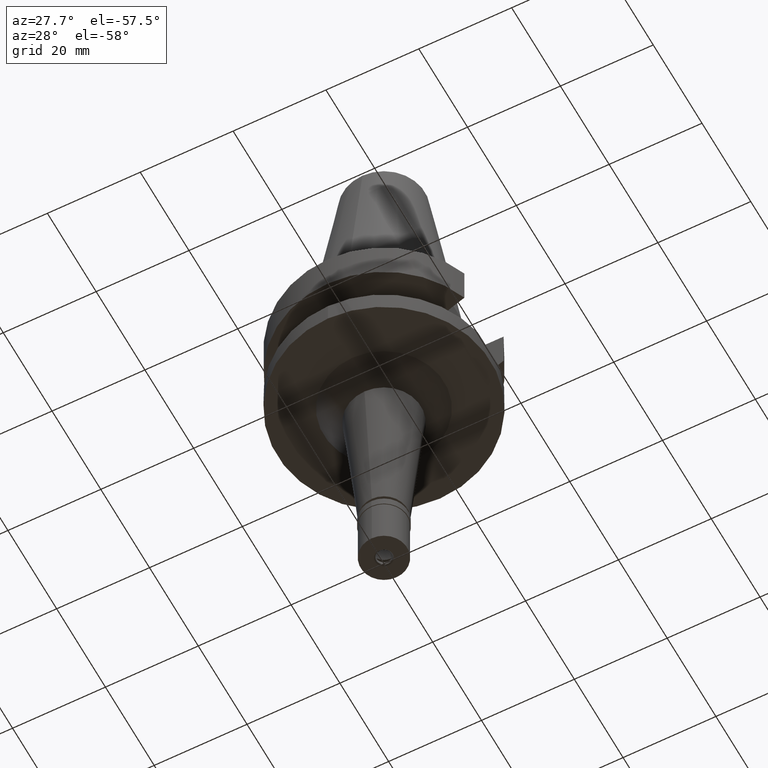
[diagram: clean part render]
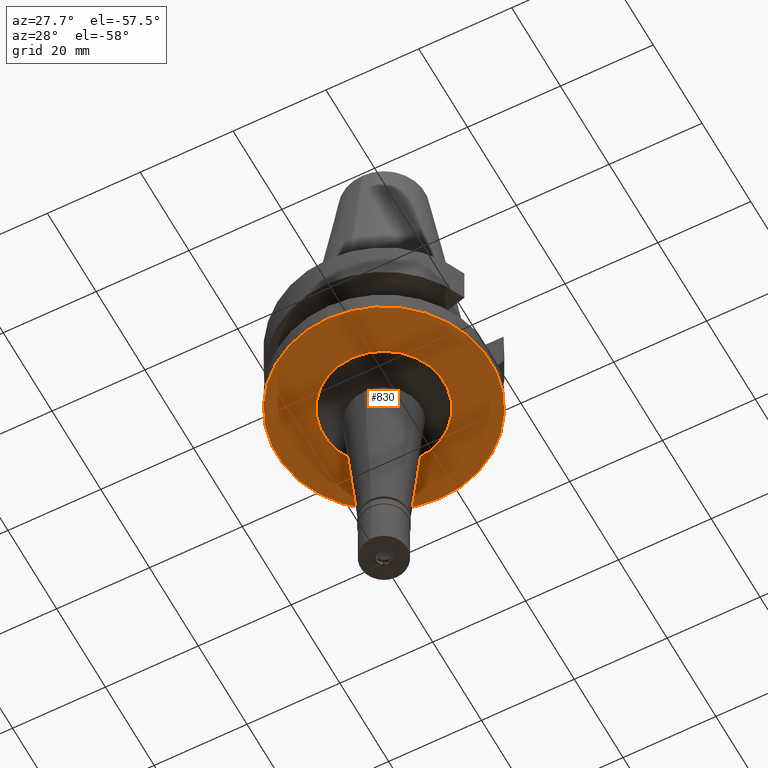
[diagram: same view with one face highlighted and labeled with its STEP entity id]
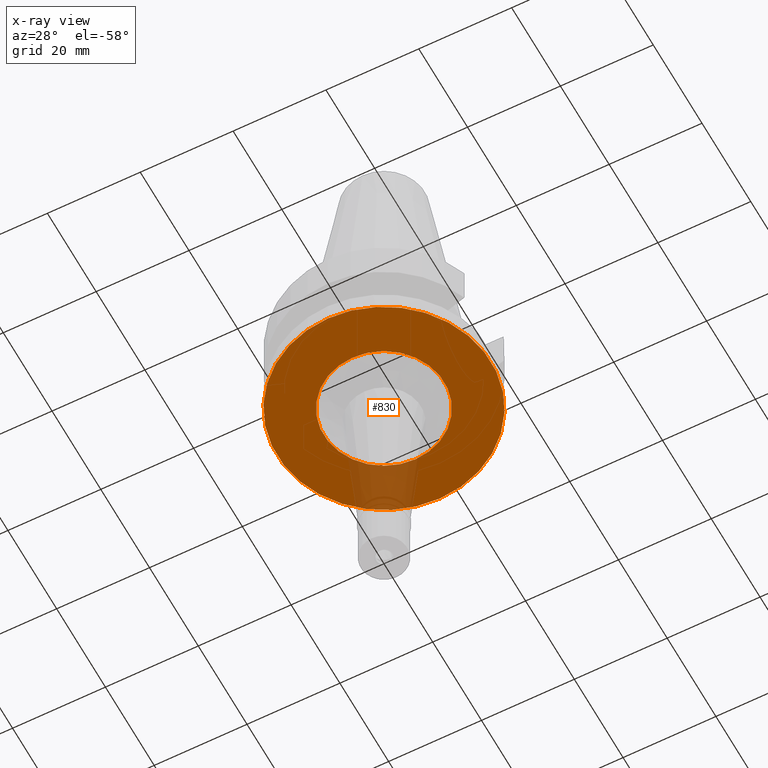
[diagram: x-ray of the same camera — body ghosted, the highlighted face saturated]
A machine part, auxiliary view. The second image highlights one B-rep face of the part: STEP entity #830.
The next image is the same camera in x-ray: the body ghosted, the highlighted face saturated — about 11% of this face is hidden behind the body in this view.
In plain terms, the highlighted planar face has unit normal (0, 0, -1).
Its self-contained STEP definition (entity closure, byte-faithful):
#98 = CARTESIAN_POINT ( 'NONE',  ( 0.0000000000000000000, 23.00000000000000000, -22.00000000000000000 ) ) ;
#202 = ORIENTED_EDGE ( 'NONE', *, *, #1819, .F. ) ;
#225 = EDGE_CURVE ( 'NONE', #638, #2445, #453, .T. ) ;
#265 = DIRECTION ( 'NONE',  ( 0.0000000000000000000, 1.000000000000000000, 0.0000000000000000000 ) ) ;
#289 = DIRECTION ( 'NONE',  ( 0.0000000000000000000, 0.0000000000000000000, 1.000000000000000000 ) ) ;
#341 = DIRECTION ( 'NONE',  ( 0.0000000000000000000, 0.0000000000000000000, -1.000000000000000000 ) ) ;
#384 = DIRECTION ( 'NONE',  ( 0.0000000000000000000, -1.000000000000000000, 0.0000000000000000000 ) ) ;
#453 = CIRCLE ( 'NONE', #1450, 23.00000000000000000 ) ;
#480 = ORIENTED_EDGE ( 'NONE', *, *, #1225, .F. ) ;
#498 = EDGE_CURVE ( 'NONE', #1632, #1484, #2029, .T. ) ;
#638 = VERTEX_POINT ( 'NONE', #98 ) ;
#722 = CIRCLE ( 'NONE', #1875, 12.97461455987999912 ) ;
#754 = FACE_BOUND ( 'NONE', #2226, .T. ) ;
#765 = CARTESIAN_POINT ( 'NONE',  ( 0.0000000000000000000, 1.890670960863999669E-14, -22.00000000000000000 ) ) ;
#830 = ADVANCED_FACE ( 'NONE', ( #975, #754 ), #2860, .T. ) ;
#953 = DIRECTION ( 'NONE',  ( 0.0000000000000000000, -1.000000000000000000, 0.0000000000000000000 ) ) ;
#975 = FACE_OUTER_BOUND ( 'NONE', #1574, .T. ) ;
#1064 = CIRCLE ( 'NONE', #2264, 23.00000000000000000 ) ;
#1218 = CARTESIAN_POINT ( 'NONE',  ( 0.0000000000000000000, 0.0000000000000000000, -22.00000000000000000 ) ) ;
#1225 = EDGE_CURVE ( 'NONE', #1484, #1632, #722, .T. ) ;
#1241 = DIRECTION ( 'NONE',  ( 0.0000000000000000000, 1.000000000000000000, 0.0000000000000000000 ) ) ;
#1313 = CARTESIAN_POINT ( 'NONE',  ( 0.0000000000000000000, 0.0000000000000000000, -22.00000000000000000 ) ) ;
#1450 = AXIS2_PLACEMENT_3D ( 'NONE', #765, #289, #265 ) ;
#1484 = VERTEX_POINT ( 'NONE', #2473 ) ;
#1485 = CARTESIAN_POINT ( 'NONE',  ( 0.0000000000000000000, 1.890670960863999669E-14, -22.00000000000000000 ) ) ;
#1574 = EDGE_LOOP ( 'NONE', ( #2907, #202 ) ) ;
#1632 = VERTEX_POINT ( 'NONE', #2148 ) ;
#1651 = DIRECTION ( 'NONE',  ( 0.0000000000000000000, 0.0000000000000000000, -1.000000000000000000 ) ) ;
#1704 = DIRECTION ( 'NONE',  ( 0.0000000000000000000, 0.0000000000000000000, 1.000000000000000000 ) ) ;
#1727 = DIRECTION ( 'NONE',  ( 0.0000000000000000000, -1.000000000000000000, 0.0000000000000000000 ) ) ;
#1791 = AXIS2_PLACEMENT_3D ( 'NONE', #1218, #341, #1727 ) ;
#1796 = CARTESIAN_POINT ( 'NONE',  ( 0.0000000000000000000, -23.00000000000000000, -22.00000000000000000 ) ) ;
#1819 = EDGE_CURVE ( 'NONE', #2445, #638, #1064, .T. ) ;
#1875 = AXIS2_PLACEMENT_3D ( 'NONE', #1313, #2236, #1241 ) ;
#2029 = CIRCLE ( 'NONE', #2173, 12.97461455987999912 ) ;
#2148 = CARTESIAN_POINT ( 'NONE',  ( 0.0000000000000000000, -12.97461455987999912, -22.00000000000000000 ) ) ;
#2173 = AXIS2_PLACEMENT_3D ( 'NONE', #2350, #1651, #953 ) ;
#2226 = EDGE_LOOP ( 'NONE', ( #480, #2313 ) ) ;
#2236 = DIRECTION ( 'NONE',  ( 0.0000000000000000000, 0.0000000000000000000, -1.000000000000000000 ) ) ;
#2264 = AXIS2_PLACEMENT_3D ( 'NONE', #1485, #1704, #384 ) ;
#2313 = ORIENTED_EDGE ( 'NONE', *, *, #498, .F. ) ;
#2350 = CARTESIAN_POINT ( 'NONE',  ( 0.0000000000000000000, 0.0000000000000000000, -22.00000000000000000 ) ) ;
#2445 = VERTEX_POINT ( 'NONE', #1796 ) ;
#2473 = CARTESIAN_POINT ( 'NONE',  ( 0.0000000000000000000, 12.97461455987999912, -22.00000000000000000 ) ) ;
#2860 = PLANE ( 'NONE',  #1791 ) ;
#2907 = ORIENTED_EDGE ( 'NONE', *, *, #225, .F. ) ;